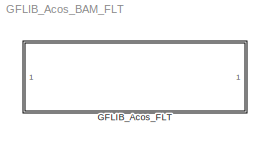
MODEL GFLIB_Acos_BAM_FLT
KIND model
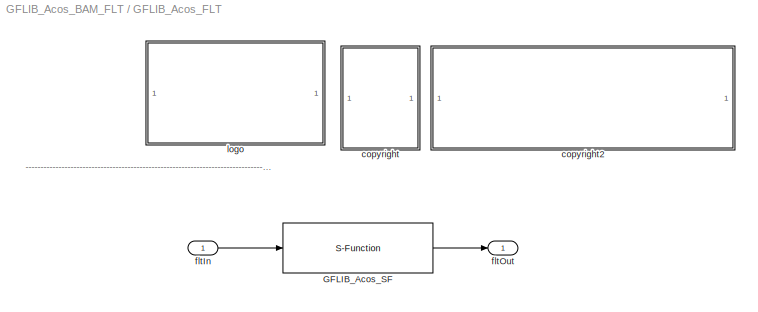
BLOCK [SubSystem] GFLIB_Acos_FLT
  Ports = [1, 1]
  RequestExecContextInheritance = off
  SID = 1
BLOCK [S-Function] GFLIB_Acos_FLT/GFLIB_Acos_SF
  EnableBusSupport = off
  FunctionName = GFLIB_Acos_SF_FLT
  Ports = [1, 1]
  SID = 4
BLOCK [SubSystem] GFLIB_Acos_FLT/<copyright redacted>
  Ports = []
  RequestExecContextInheritance = off
  SID = 17
BLOCK [SubSystem] GFLIB_Acos_FLT/copyright2
  Ports = []
  RequestExecContextInheritance = off
  SID = 18
BLOCK [Inport] GFLIB_Acos_FLT/fltIn
  IconDisplay = Port number
  SID = 5
BLOCK [Outport] GFLIB_Acos_FLT/fltOut
  IconDisplay = Port number
  SID = 6
BLOCK [SubSystem] GFLIB_Acos_FLT/logo
  Ports = []
  RequestExecContextInheritance = off
  SID = 7
ANNOTATION GFLIB_Acos_FLT: ---------------------------------------------------------------------------------------------------------------------------------------------------------------------------------------------------
LINE GFLIB_Acos_FLT/GFLIB_Acos_SF:1 -> GFLIB_Acos_FLT/fltOut:1
LINE GFLIB_Acos_FLT/fltIn:1 -> GFLIB_Acos_FLT/GFLIB_Acos_SF:1
